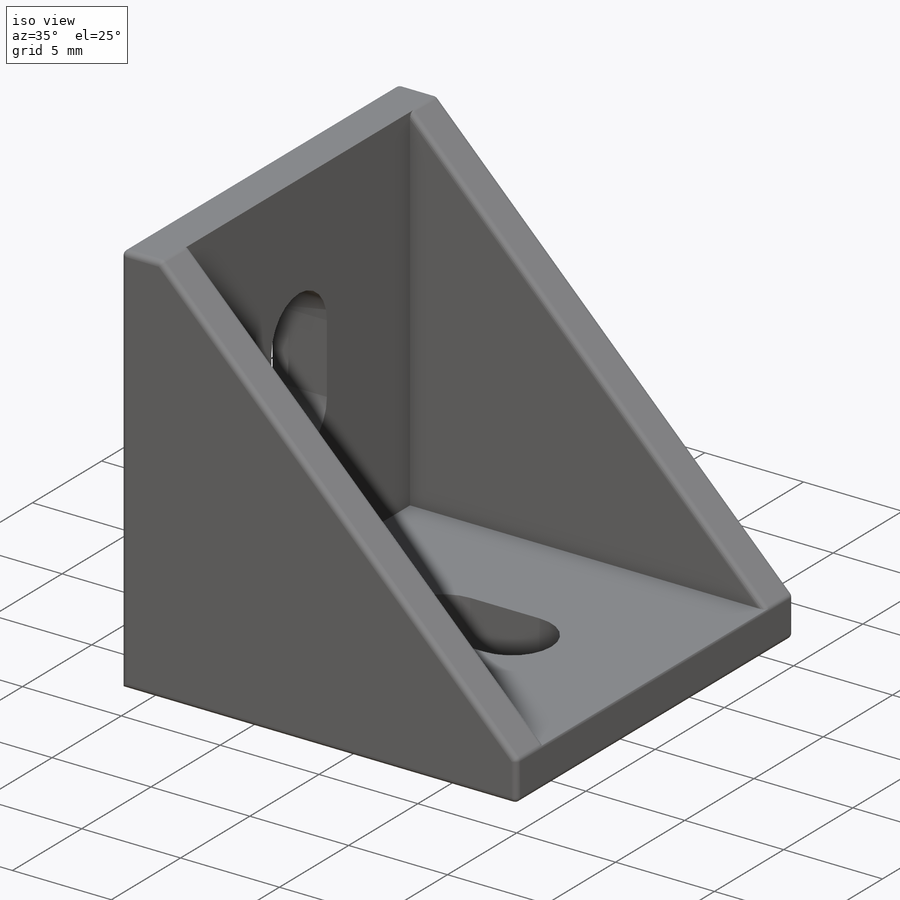
[diagram: iso view]
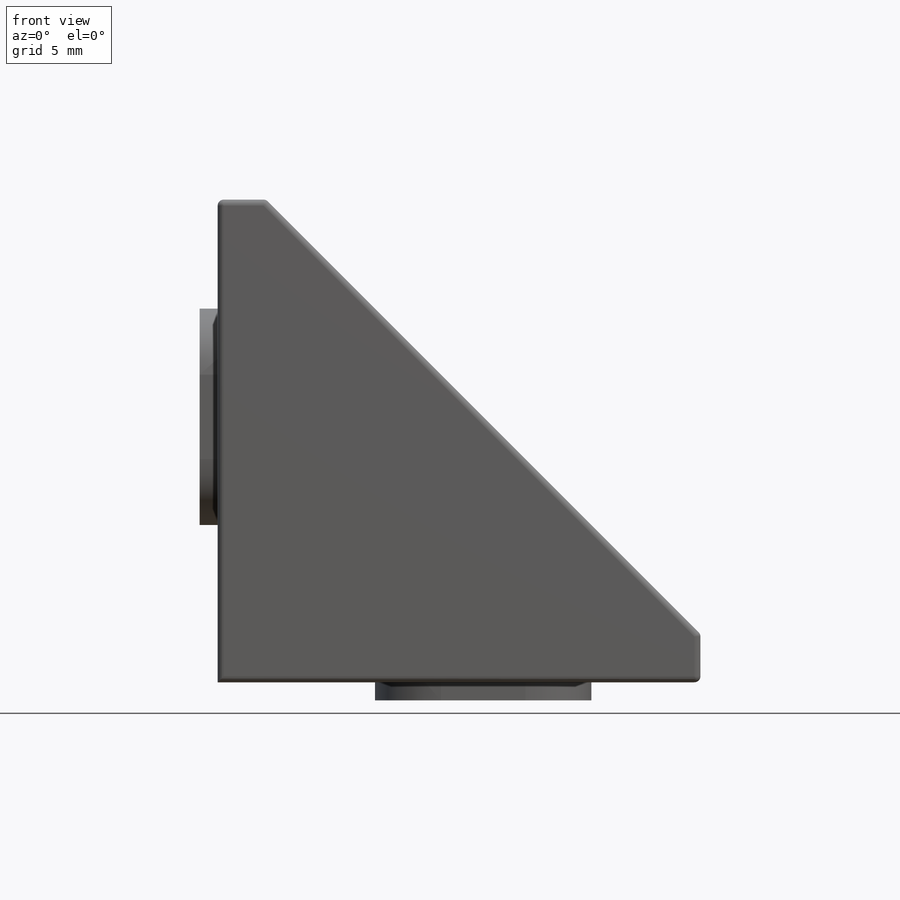
[diagram: front view]
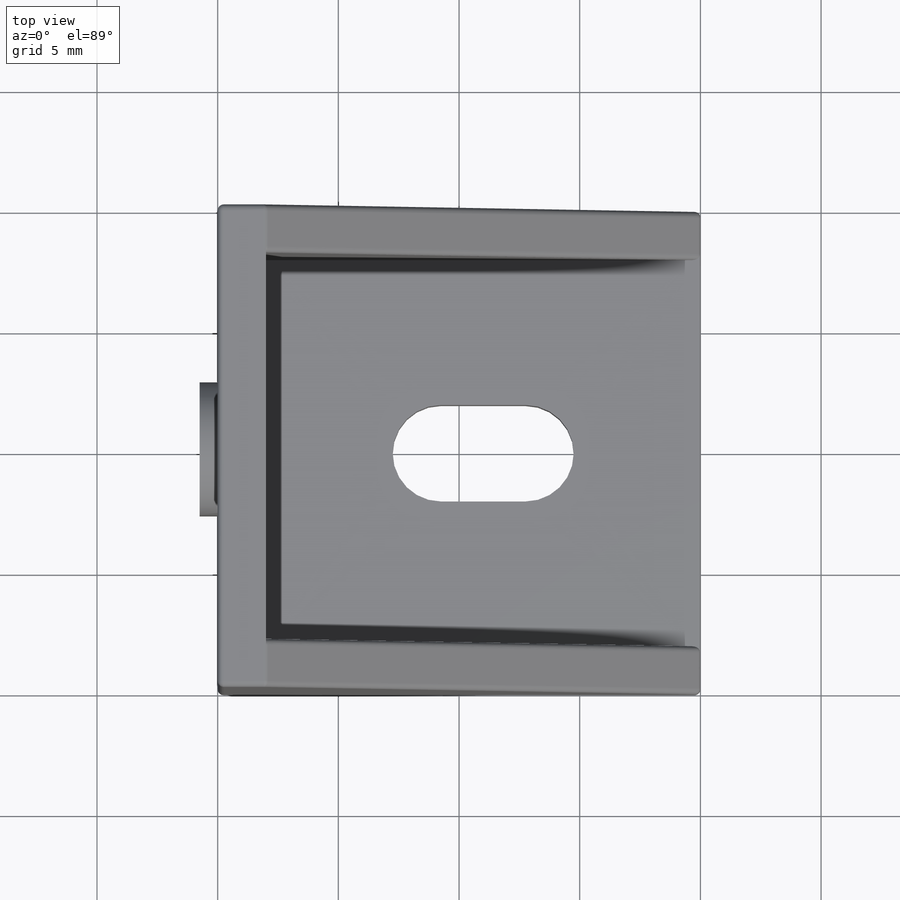
[diagram: top view]
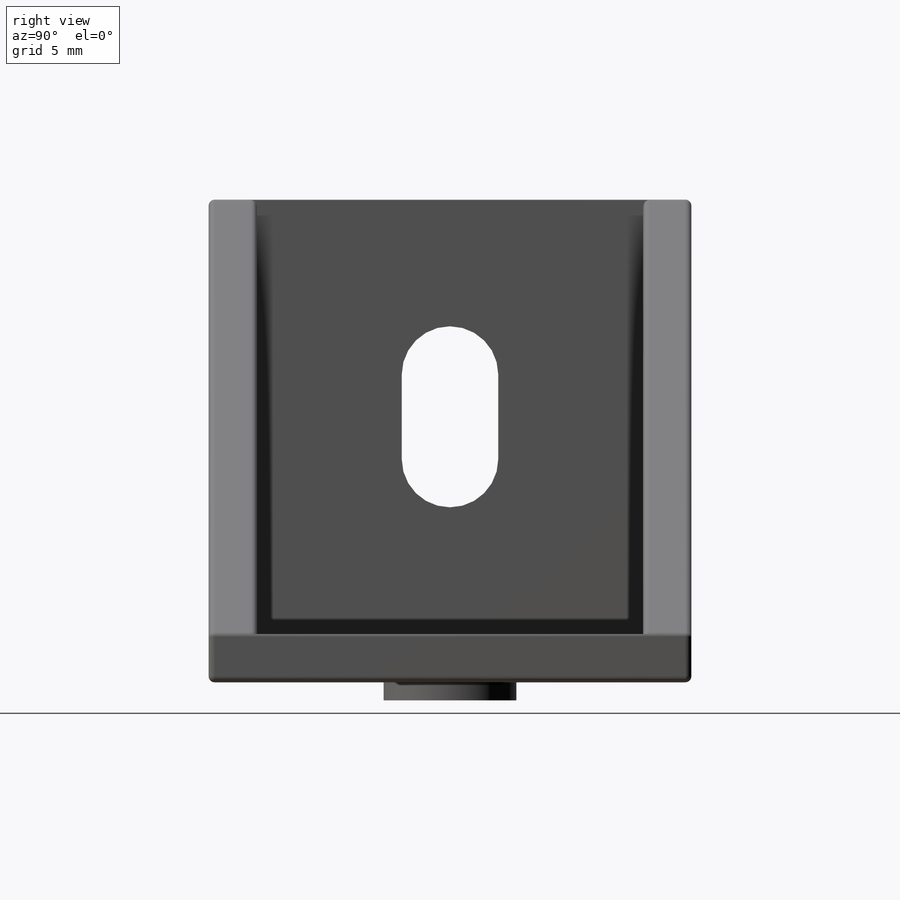
[diagram: right view]
SOLIDWORKS PART (.sldprt)
format: sldprt  version: not decoded by parser v0  size: 494,592 bytes
history: native  units: mm
features: sketch x8, cut_extrude x5, extrude x3, material x1, plane x1, fillet x1 (+13 scaffold rows collapsed)
feature tree (32):
  scaffold x13  (default folders/planes/origin — collapsed)
  material  "Material <not specified>"
  sketch  "Sketch1"  dims[D5=0.25mm D1=20.0mm D2=20.0mm D3=2.0mm D4=2.0mm]
  extrude  "Boss-Extrude1"  Depth=20mm
  plane  "Plane1"  Offset=20mm
  sketch  "Sketch3"  dims[D1=2.0mm D2=18.0mm D3=16.0mm]
  cut_extrude  "Cut-Extrude2"  Depth=2mm
  sketch  "Sketch4"  dims[D1=4.0mm D2=3.5mm D3=9.0mm]
  cut_extrude  "Cut-Extrude3"  Depth=2mm
  sketch  "Sketch5"  dims[D1=4.0mm D2=3.5mm D3=9.0mm]
  cut_extrude  "Cut-Extrude4"  Depth=2mm
  sketch  "Sketch6"  dims[D1=0.75mm]
  extrude  "Boss-Extrude2"  Depth=0.75mm
  sketch  "Sketch7"  dims[D1=0.75mm]
  cut_extrude  "Cut-Extrude5"  Depth=0.75mm
  sketch  "Sketch9"  dims[D1=0.75mm]
  extrude  "Boss-Extrude3"  Depth=0.75mm
  sketch  "Sketch10"  dims[D1=0.75mm]
  cut_extrude  "Cut-Extrude6"  Depth=0.75mm
  fillet  "Fillet5"  Radius=0.25mm
decode coverage: 17 of 17 modeling features carry decoded parameters
note: suppression state not decoded; provenance and decode notes live in map.json
